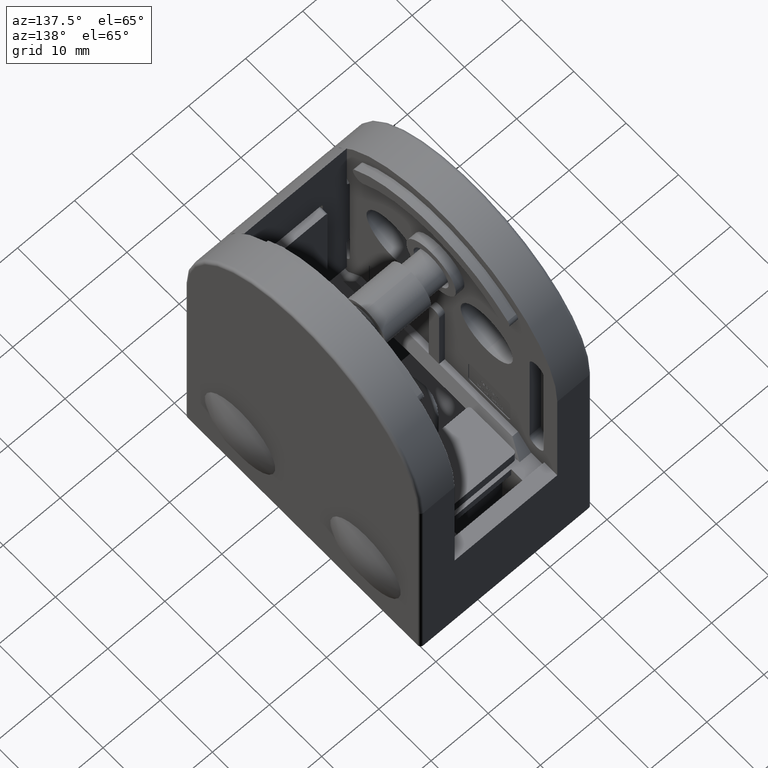
[diagram: clean part render]
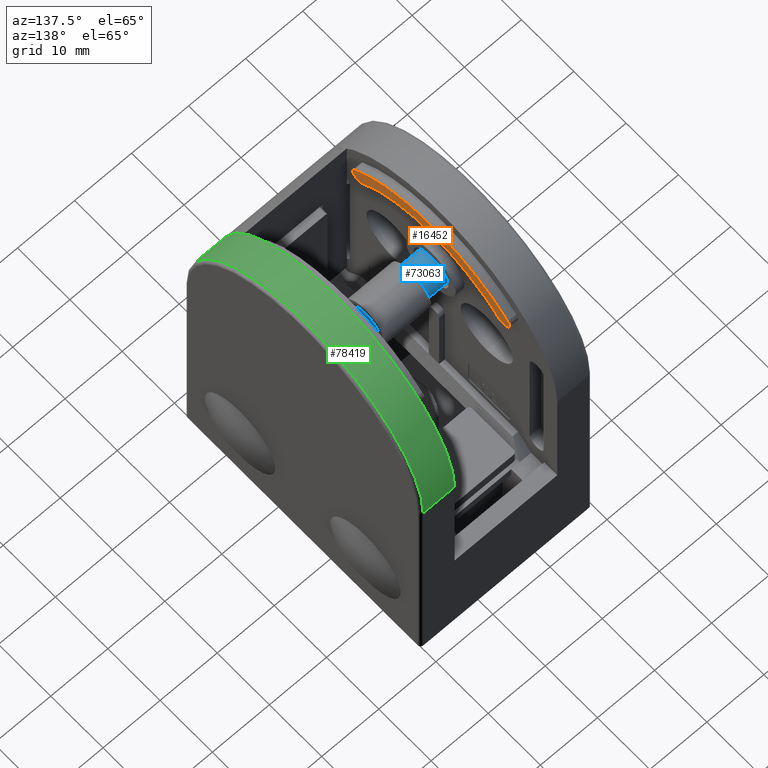
[diagram: same view with three faces highlighted in distinct colors, each labeled with its STEP entity id]
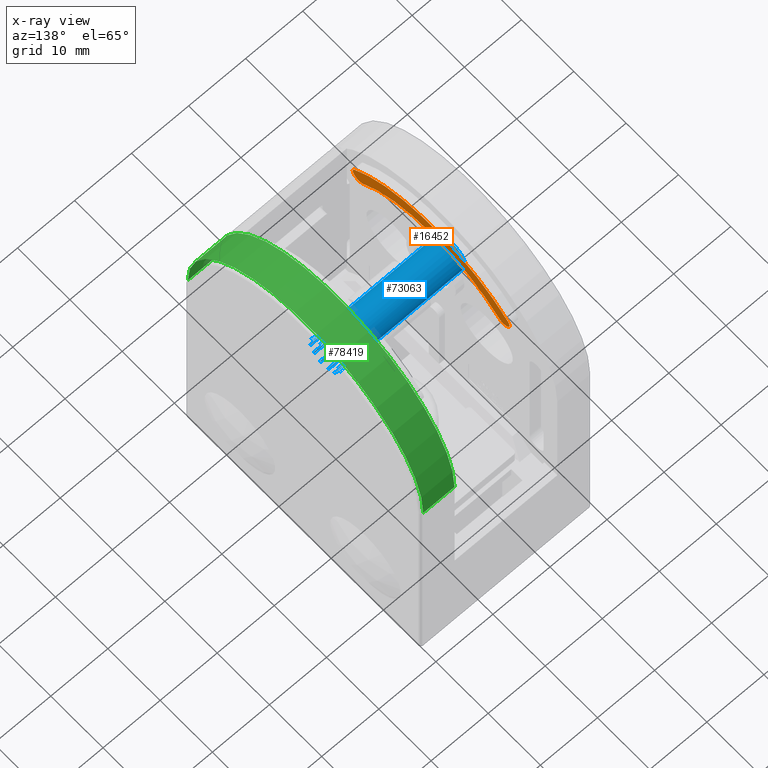
[diagram: x-ray of the same camera — body ghosted, the three highlighted faces saturated]
A machine part, auxiliary view with three faces highlighted in distinct colors.
The next image is the same camera in x-ray (body ghosted, the three faces saturated) — at least one of them is partly hidden behind the body in this view.
Their STEP definitions:

[orange] entity #16452 — the highlighted planar face has unit normal (-1, 0, 0).
#190 = DIRECTION ( 'NONE',  ( 0.000000000000000000, 0.000000000000000000, 1.000000000000000000 ) ) ;
#597 = CARTESIAN_POINT ( 'NONE',  ( 7.500000000000000000, -12.94196891191710463, 53.15367301153983703 ) ) ;
#2457 = CARTESIAN_POINT ( 'NONE',  ( 7.500000000000000000, -13.80000000000000249, 53.99259055926624029 ) ) ;
#2686 = VERTEX_POINT ( 'NONE', #12758 ) ;
#6182 = DIRECTION ( 'NONE',  ( 1.000000000000000000, 0.000000000000000000, 0.000000000000000000 ) ) ;
#9972 = EDGE_LOOP ( 'NONE', ( #33554, #26272, #20856, #91101 ) ) ;
#10549 = AXIS2_PLACEMENT_3D ( 'NONE', #44881, #36838, #65500 ) ;
#12758 = CARTESIAN_POINT ( 'NONE',  ( 7.500000000000000000, 14.65803108808290034, 54.83150810699262934 ) ) ;
#16176 = DIRECTION ( 'NONE',  ( 1.000000000000000000, 0.000000000000000000, 0.000000000000000000 ) ) ;
#16452 = ADVANCED_FACE ( 'NONE', ( #53926 ), #51688, .F. ) ;
#20178 = CIRCLE ( 'NONE', #30149, 1.199999999999999734 ) ;
#20856 = ORIENTED_EDGE ( 'NONE', *, *, #59773, .T. ) ;
#26272 = ORIENTED_EDGE ( 'NONE', *, *, #67344, .T. ) ;
#30149 = AXIS2_PLACEMENT_3D ( 'NONE', #71850, #63597, #190 ) ;
#31591 = DIRECTION ( 'NONE',  ( 0.000000000000000000, 0.000000000000000000, -1.000000000000000000 ) ) ;
#33554 = ORIENTED_EDGE ( 'NONE', *, *, #71491, .T. ) ;
#36838 = DIRECTION ( 'NONE',  ( -1.000000000000000000, -0.000000000000000000, 0.000000000000000000 ) ) ;
#37505 = DIRECTION ( 'NONE',  ( 0.000000000000000000, 0.000000000000000000, -1.000000000000000000 ) ) ;
#44881 = CARTESIAN_POINT ( 'NONE',  ( 7.500000000000000000, 6.899999999999997691, 47.24629527963310949 ) ) ;
#46950 = EDGE_CURVE ( 'NONE', #54317, #55582, #54565, .T. ) ;
#51688 = PLANE ( 'NONE',  #10549 ) ;
#53926 = FACE_OUTER_BOUND ( 'NONE', #9972, .T. ) ;
#54317 = VERTEX_POINT ( 'NONE', #597 ) ;
#54565 = CIRCLE ( 'NONE', #61135, 18.10000000000001918 ) ;
#55582 = VERTEX_POINT ( 'NONE', #86112 ) ;
#59773 = EDGE_CURVE ( 'NONE', #78953, #54317, #70880, .T. ) ;
#61135 = AXIS2_PLACEMENT_3D ( 'NONE', #81539, #80872, #31591 ) ;
#63597 = DIRECTION ( 'NONE',  ( 1.000000000000000000, 0.000000000000000000, -0.000000000000000000 ) ) ;
#65500 = DIRECTION ( 'NONE',  ( 0.000000000000000000, 0.000000000000000000, 1.000000000000000000 ) ) ;
#65797 = AXIS2_PLACEMENT_3D ( 'NONE', #2457, #16176, #37505 ) ;
#67344 = EDGE_CURVE ( 'NONE', #2686, #78953, #82992, .T. ) ;
#70693 = CARTESIAN_POINT ( 'NONE',  ( 7.500000000000000000, -6.722053469410127491E-15, 40.49999999999997868 ) ) ;
#70880 = CIRCLE ( 'NONE', #65797, 1.199999999999999734 ) ;
#71314 = AXIS2_PLACEMENT_3D ( 'NONE', #70693, #6182, #90451 ) ;
#71491 = EDGE_CURVE ( 'NONE', #55582, #2686, #20178, .T. ) ;
#71850 = CARTESIAN_POINT ( 'NONE',  ( 7.500000000000000000, 13.80000000000000071, 53.99259055926624029 ) ) ;
#75343 = CARTESIAN_POINT ( 'NONE',  ( 7.500000000000000000, -14.65803108808290389, 54.83150810699263644 ) ) ;
#78953 = VERTEX_POINT ( 'NONE', #75343 ) ;
#80872 = DIRECTION ( 'NONE',  ( -1.000000000000000000, -0.000000000000000000, -0.000000000000000000 ) ) ;
#81539 = CARTESIAN_POINT ( 'NONE',  ( 7.500000000000000000, -6.722053469410127491E-15, 40.49999999999997868 ) ) ;
#82992 = CIRCLE ( 'NONE', #71314, 20.50000000000002487 ) ;
#86112 = CARTESIAN_POINT ( 'NONE',  ( 7.500000000000000000, 12.94196891191709931, 53.15367301153982282 ) ) ;
#90451 = DIRECTION ( 'NONE',  ( 0.000000000000000000, 0.000000000000000000, -1.000000000000000000 ) ) ;
#91101 = ORIENTED_EDGE ( 'NONE', *, *, #46950, .T. ) ;

[blue] entity #73063 — the highlighted cylindrical surface (bore or boss wall) has radius 2.8 mm, axis along (1, -0, -0).
#51 = CARTESIAN_POINT ( 'NONE',  ( -2.033627779027476379, -1.924670895599498444, 5.000000000000000000 ) ) ;
#498 = CARTESIAN_POINT ( 'NONE',  ( -2.723508766279270965, -0.6499999999999713785, 5.000000000000000888 ) ) ;
#782 = CARTESIAN_POINT ( 'NONE',  ( 1.924670895599505327, -2.033627779027469273, 0.2999999999999997669 ) ) ;
#812 = DIRECTION ( 'NONE',  ( 0.000000000000000000, 0.000000000000000000, 1.000000000000000000 ) ) ;
#1055 = CARTESIAN_POINT ( 'NONE',  ( 0.000000000000000000, 0.000000000000000000, 5.000000000000000000 ) ) ;
#1503 = CARTESIAN_POINT ( 'NONE',  ( 2.033627779027463056, 1.924670895599512654, 0.2999999999999999334 ) ) ;
#1652 = LINE ( 'NONE', #21527, #60303 ) ;
#2131 = DIRECTION ( 'NONE',  ( 0.000000000000000000, 0.000000000000000000, 1.000000000000000000 ) ) ;
#2160 = ORIENTED_EDGE ( 'NONE', *, *, #87257, .T. ) ;
#2297 = CARTESIAN_POINT ( 'NONE',  ( 2.683627779027454086, -0.7988378706797595319, 5.000000000000000888 ) ) ;
#2349 = EDGE_CURVE ( 'NONE', #74665, #32201, #62572, .T. ) ;
#2765 = CIRCLE ( 'NONE', #16657, 2.799999999999999822 ) ;
#2938 = EDGE_CURVE ( 'NONE', #15989, #78799, #35914, .T. ) ;
#3038 = ORIENTED_EDGE ( 'NONE', *, *, #79364, .F. ) ;
#3473 = ORIENTED_EDGE ( 'NONE', *, *, #81772, .T. ) ;
#3647 = CARTESIAN_POINT ( 'NONE',  ( 0.6500000000000000222, -2.723508766279264304, 5.000000000000000000 ) ) ;
#4094 = AXIS2_PLACEMENT_3D ( 'NONE', #21038, #21308, #43224 ) ;
#4400 = DIRECTION ( 'NONE',  ( 0.000000000000000000, 0.000000000000000000, 1.000000000000000000 ) ) ;
#4460 = CARTESIAN_POINT ( 'NONE',  ( -0.6500000000000000222, 2.723508766279264304, 5.000000000000000888 ) ) ;
#4645 = AXIS2_PLACEMENT_3D ( 'NONE', #69507, #76515, #89790 ) ;
#4768 = LINE ( 'NONE', #51316, #12532 ) ;
#4811 = DIRECTION ( 'NONE',  ( -0.4999999999999980016, 0.8660254037844399289, 0.000000000000000000 ) ) ;
#4962 = DIRECTION ( 'NONE',  ( 0.000000000000000000, 0.000000000000000000, -1.000000000000000000 ) ) ;
#4986 = CARTESIAN_POINT ( 'NONE',  ( 0.000000000000000000, 0.000000000000000000, 0.2999999999999996003 ) ) ;
#5145 = CARTESIAN_POINT ( 'NONE',  ( -0.6499999999999999112, 2.723508766279263860, 0.2999999999999996003 ) ) ;
#5450 = EDGE_CURVE ( 'NONE', #25164, #88055, #69270, .T. ) ;
#5640 = CIRCLE ( 'NONE', #4094, 2.799999999999999822 ) ;
#5703 = VERTEX_POINT ( 'NONE', #82475 ) ;
#5716 = VERTEX_POINT ( 'NONE', #53528 ) ;
#5798 = CIRCLE ( 'NONE', #9464, 2.800000000000000266 ) ;
#5879 = CARTESIAN_POINT ( 'NONE',  ( -0.7988378706797688578, -2.683627779027451421, 5.000000000000000888 ) ) ;
#6036 = CARTESIAN_POINT ( 'NONE',  ( -0.6500000000000001332, -2.723508766279265192, 5.000000000000000000 ) ) ;
#6383 = CARTESIAN_POINT ( 'NONE',  ( 1.924670895599505327, -2.033627779027469273, 5.000000000000000000 ) ) ;
#6647 = DIRECTION ( 'NONE',  ( 0.000000000000000000, 0.000000000000000000, -1.000000000000000000 ) ) ;
#7041 = VECTOR ( 'NONE', #4962, 1000.000000000000000 ) ;
#7373 = VERTEX_POINT ( 'NONE', #28487 ) ;
#7774 = CARTESIAN_POINT ( 'NONE',  ( 1.924670895599519760, 2.033627779027455951, 5.000000000000000000 ) ) ;
#8068 = DIRECTION ( 'NONE',  ( 0.000000000000000000, 0.000000000000000000, -1.000000000000000000 ) ) ;
#8143 = ORIENTED_EDGE ( 'NONE', *, *, #48801, .T. ) ;
#8618 = ORIENTED_EDGE ( 'NONE', *, *, #69979, .T. ) ;
#9193 = DIRECTION ( 'NONE',  ( 1.000000000000000000, 0.000000000000000000, 0.000000000000000000 ) ) ;
#9464 = AXIS2_PLACEMENT_3D ( 'NONE', #46677, #18624, #12355 ) ;
#9512 = LINE ( 'NONE', #60144, #36077 ) ;
#10080 = CARTESIAN_POINT ( 'NONE',  ( 0.6499999999999999112, 2.723508766279263860, 0.2999999999999996003 ) ) ;
#10113 = LINE ( 'NONE', #18562, #82977 ) ;
#10151 = CARTESIAN_POINT ( 'NONE',  ( 0.000000000000000000, 0.000000000000000000, 0.2999999999999996003 ) ) ;
#10416 = CARTESIAN_POINT ( 'NONE',  ( 0.6500000000000000222, 2.723508766279264304, 5.000000000000000000 ) ) ;
#10665 = VERTEX_POINT ( 'NONE', #38895 ) ;
#10695 = CARTESIAN_POINT ( 'NONE',  ( -2.723508766279257198, 0.6500000000000284439, 5.000000000000000000 ) ) ;
#10698 = AXIS2_PLACEMENT_3D ( 'NONE', #17794, #25547, #32958 ) ;
#11096 = DIRECTION ( 'NONE',  ( 1.000000000000000000, 0.000000000000000000, 0.000000000000000000 ) ) ;
#11265 = DIRECTION ( 'NONE',  ( 0.000000000000000000, 0.000000000000000000, -1.000000000000000000 ) ) ;
#11712 = ORIENTED_EDGE ( 'NONE', *, *, #60626, .T. ) ;
#11989 = ORIENTED_EDGE ( 'NONE', *, *, #48820, .T. ) ;
#12050 = ORIENTED_EDGE ( 'NONE', *, *, #30045, .T. ) ;
#12251 = CIRCLE ( 'NONE', #60663, 2.799999999999999822 ) ;
#12355 = DIRECTION ( 'NONE',  ( -0.8660254037844449249, -0.4999999999999889533, 0.000000000000000000 ) ) ;
#12408 = EDGE_CURVE ( 'NONE', #74667, #31434, #52909, .T. ) ;
#12442 = DIRECTION ( 'NONE',  ( 0.000000000000000000, 0.000000000000000000, -1.000000000000000000 ) ) ;
#12532 = VECTOR ( 'NONE', #44518, 1000.000000000000000 ) ;
#12705 = AXIS2_PLACEMENT_3D ( 'NONE', #79760, #16263, #72703 ) ;
#12782 = ORIENTED_EDGE ( 'NONE', *, *, #62045, .T. ) ;
#12920 = DIRECTION ( 'NONE',  ( 0.000000000000000000, 0.000000000000000000, -1.000000000000000000 ) ) ;
#13493 = DIRECTION ( 'NONE',  ( 0.000000000000000000, 0.000000000000000000, -1.000000000000000000 ) ) ;
#13880 = DIRECTION ( 'NONE',  ( 0.000000000000000000, 0.000000000000000000, -1.000000000000000000 ) ) ;
#14097 = VECTOR ( 'NONE', #12442, 1000.000000000000000 ) ;
#15103 = ORIENTED_EDGE ( 'NONE', *, *, #85984, .T. ) ;
#15235 = VERTEX_POINT ( 'NONE', #21439 ) ;
#15317 = CARTESIAN_POINT ( 'NONE',  ( 2.033627779027463056, 1.924670895599512654, 5.000000000000000000 ) ) ;
#15989 = VERTEX_POINT ( 'NONE', #6036 ) ;
#16263 = DIRECTION ( 'NONE',  ( 0.000000000000000000, 0.000000000000000000, 1.000000000000000000 ) ) ;
#16657 = AXIS2_PLACEMENT_3D ( 'NONE', #66643, #46052, #11096 ) ;
#16776 = EDGE_CURVE ( 'NONE', #85544, #7373, #73706, .T. ) ;
#16801 = DIRECTION ( 'NONE',  ( 0.000000000000000000, 0.000000000000000000, 1.000000000000000000 ) ) ;
#17545 = ORIENTED_EDGE ( 'NONE', *, *, #23704, .T. ) ;
#17794 = CARTESIAN_POINT ( 'NONE',  ( 0.000000000000000000, 0.000000000000000000, 5.000000000000000000 ) ) ;
#18200 = VERTEX_POINT ( 'NONE', #21213 ) ;
#18414 = DIRECTION ( 'NONE',  ( 0.000000000000000000, 0.000000000000000000, -1.000000000000000000 ) ) ;
#18562 = CARTESIAN_POINT ( 'NONE',  ( -2.683627779027465632, -0.7988378706797221174, 5.000000000000000000 ) ) ;
#18624 = DIRECTION ( 'NONE',  ( 0.000000000000000000, 0.000000000000000000, 1.000000000000000000 ) ) ;
#18632 = CIRCLE ( 'NONE', #89856, 2.799999999999999822 ) ;
#18688 = EDGE_CURVE ( 'NONE', #35808, #61516, #60291, .T. ) ;
#18763 = CARTESIAN_POINT ( 'NONE',  ( 0.000000000000000000, 0.000000000000000000, 0.2999999999999996003 ) ) ;
#18767 = AXIS2_PLACEMENT_3D ( 'NONE', #44507, #2131, #52870 ) ;
#18980 = DIRECTION ( 'NONE',  ( -1.047444401652940164E-14, -1.000000000000000000, 0.000000000000000000 ) ) ;
#19158 = DIRECTION ( 'NONE',  ( 0.000000000000000000, 0.000000000000000000, -1.000000000000000000 ) ) ;
#19194 = CARTESIAN_POINT ( 'NONE',  ( -0.6500000000000000222, -2.723508766279264304, 5.000000000000000000 ) ) ;
#19363 = EDGE_CURVE ( 'NONE', #84702, #76849, #38150, .T. ) ;
#19811 = EDGE_CURVE ( 'NONE', #5703, #84702, #83335, .T. ) ;
#20345 = CARTESIAN_POINT ( 'NONE',  ( 0.000000000000000000, 0.000000000000000000, 5.000000000000000000 ) ) ;
#20652 = ORIENTED_EDGE ( 'NONE', *, *, #84752, .T. ) ;
#20794 = CIRCLE ( 'NONE', #90141, 2.799999999999999822 ) ;
#20804 = VECTOR ( 'NONE', #24605, 1000.000000000000000 ) ;
#20847 = ORIENTED_EDGE ( 'NONE', *, *, #25056, .T. ) ;
#21038 = CARTESIAN_POINT ( 'NONE',  ( 0.000000000000000000, 0.000000000000000000, 0.2999999999999996003 ) ) ;
#21213 = CARTESIAN_POINT ( 'NONE',  ( -2.033627779027436411, 1.924670895599542186, 5.000000000000000000 ) ) ;
#21308 = DIRECTION ( 'NONE',  ( 0.000000000000000000, 0.000000000000000000, 1.000000000000000000 ) ) ;
#21439 = CARTESIAN_POINT ( 'NONE',  ( 0.7988378706797500950, 2.683627779027457194, 0.2999999999999997669 ) ) ;
#21527 = CARTESIAN_POINT ( 'NONE',  ( -1.924670895599491116, 2.033627779027482596, 5.000000000000000000 ) ) ;
#21858 = CIRCLE ( 'NONE', #12705, 2.799999999999999822 ) ;
#21887 = VERTEX_POINT ( 'NONE', #90761 ) ;
#21943 = EDGE_CURVE ( 'NONE', #64517, #78556, #65513, .T. ) ;
#21996 = VERTEX_POINT ( 'NONE', #75671 ) ;
#22106 = ORIENTED_EDGE ( 'NONE', *, *, #46048, .F. ) ;
#22673 = ORIENTED_EDGE ( 'NONE', *, *, #54941, .F. ) ;
#22835 = DIRECTION ( 'NONE',  ( -0.000000000000000000, -0.000000000000000000, 1.000000000000000000 ) ) ;
#23285 = DIRECTION ( 'NONE',  ( 0.5000000000000039968, 0.8660254037844363761, 0.000000000000000000 ) ) ;
#23290 = CARTESIAN_POINT ( 'NONE',  ( 2.683627779027454974, -0.7988378706797596429, 0.3000000000000002665 ) ) ;
#23397 = EDGE_CURVE ( 'NONE', #86972, #51351, #2765, .T. ) ;
#23503 = VECTOR ( 'NONE', #18414, 1000.000000000000000 ) ;
#23704 = EDGE_CURVE ( 'NONE', #78919, #5716, #37164, .T. ) ;
#23762 = VERTEX_POINT ( 'NONE', #84993 ) ;
#24443 = FACE_OUTER_BOUND ( 'NONE', #77373, .T. ) ;
#24605 = DIRECTION ( 'NONE',  ( 0.000000000000000000, 0.000000000000000000, -1.000000000000000000 ) ) ;
#24668 = CARTESIAN_POINT ( 'NONE',  ( 2.723508766279261639, -0.6500000000000093481, 0.2999999999999996003 ) ) ;
#24874 = ORIENTED_EDGE ( 'NONE', *, *, #66487, .T. ) ;
#24907 = CARTESIAN_POINT ( 'NONE',  ( 2.723508766279266524, 0.6499999999999904743, 5.000000000000000888 ) ) ;
#25056 = EDGE_CURVE ( 'NONE', #10665, #74516, #53579, .T. ) ;
#25106 = DIRECTION ( 'NONE',  ( 1.000000000000000000, 0.000000000000000000, 0.000000000000000000 ) ) ;
#25164 = VERTEX_POINT ( 'NONE', #86898 ) ;
#25547 = DIRECTION ( 'NONE',  ( 0.000000000000000000, 0.000000000000000000, 1.000000000000000000 ) ) ;
#25619 = VECTOR ( 'NONE', #61059, 1000.000000000000000 ) ;
#25661 = DIRECTION ( 'NONE',  ( 0.8660254037844415942, 0.4999999999999950040, 0.000000000000000000 ) ) ;
#25875 = DIRECTION ( 'NONE',  ( 0.000000000000000000, 0.000000000000000000, 1.000000000000000000 ) ) ;
#26085 = DIRECTION ( 'NONE',  ( 0.000000000000000000, 0.000000000000000000, 1.000000000000000000 ) ) ;
#26242 = DIRECTION ( 'NONE',  ( -0.000000000000000000, -0.000000000000000000, -1.000000000000000000 ) ) ;
#26354 = VECTOR ( 'NONE', #64050, 1000.000000000000000 ) ;
#26705 = ORIENTED_EDGE ( 'NONE', *, *, #49566, .T. ) ;
#27123 = CARTESIAN_POINT ( 'NONE',  ( 0.7988378706797502060, 2.683627779027457194, 5.000000000000000000 ) ) ;
#27177 = ORIENTED_EDGE ( 'NONE', *, *, #23397, .T. ) ;
#27311 = CARTESIAN_POINT ( 'NONE',  ( -1.924670895599533971, -2.033627779027443072, 5.000000000000000000 ) ) ;
#27852 = CARTESIAN_POINT ( 'NONE',  ( 0.6500000000000000222, -2.723508766279264304, 5.000000000000000888 ) ) ;
#27962 = VERTEX_POINT ( 'NONE', #90698 ) ;
#28055 = VERTEX_POINT ( 'NONE', #42038 ) ;
#28334 = VERTEX_POINT ( 'NONE', #24668 ) ;
#28483 = AXIS2_PLACEMENT_3D ( 'NONE', #76270, #26085, #82486 ) ;
#28487 = CARTESIAN_POINT ( 'NONE',  ( -2.683627779027465632, -0.7988378706797221174, 0.2999999999999996003 ) ) ;
#28582 = VERTEX_POINT ( 'NONE', #782 ) ;
#28761 = CARTESIAN_POINT ( 'NONE',  ( 2.799999999999999822, 0.000000000000000000, 22.49999999999999645 ) ) ;
#28787 = AXIS2_PLACEMENT_3D ( 'NONE', #49402, #35215, #34551 ) ;
#28935 = EDGE_CURVE ( 'NONE', #63863, #42664, #12251, .T. ) ;
#29603 = CARTESIAN_POINT ( 'NONE',  ( 0.000000000000000000, 0.000000000000000000, 0.2999999999999996003 ) ) ;
#29640 = CARTESIAN_POINT ( 'NONE',  ( -2.033627779027435523, 1.924670895599541076, 0.2999999999999996003 ) ) ;
#29703 = DIRECTION ( 'NONE',  ( 0.000000000000000000, 0.000000000000000000, 1.000000000000000000 ) ) ;
#29843 = CARTESIAN_POINT ( 'NONE',  ( -2.723508766279258086, 0.6500000000000286660, 5.000000000000000000 ) ) ;
#30045 = EDGE_CURVE ( 'NONE', #61516, #10665, #74806, .T. ) ;
#30144 = CIRCLE ( 'NONE', #75975, 2.799999999999999822 ) ;
#30753 = DIRECTION ( 'NONE',  ( 1.000000000000000000, 0.000000000000000000, 0.000000000000000000 ) ) ;
#30855 = EDGE_CURVE ( 'NONE', #21887, #51351, #76937, .T. ) ;
#31434 = VERTEX_POINT ( 'NONE', #498 ) ;
#31516 = ORIENTED_EDGE ( 'NONE', *, *, #84336, .T. ) ;
#31525 = LINE ( 'NONE', #15317, #85577 ) ;
#32055 = DIRECTION ( 'NONE',  ( 0.000000000000000000, 0.000000000000000000, -1.000000000000000000 ) ) ;
#32081 = DIRECTION ( 'NONE',  ( 1.000000000000000000, 0.000000000000000000, 0.000000000000000000 ) ) ;
#32201 = VERTEX_POINT ( 'NONE', #42349 ) ;
#32437 = EDGE_CURVE ( 'NONE', #21887, #44707, #46951, .T. ) ;
#32439 = DIRECTION ( 'NONE',  ( 0.000000000000000000, 0.000000000000000000, 1.000000000000000000 ) ) ;
#32958 = DIRECTION ( 'NONE',  ( 0.4999999999999918954, -0.8660254037844432595, 0.000000000000000000 ) ) ;
#33174 = DIRECTION ( 'NONE',  ( 0.000000000000000000, 0.000000000000000000, 1.000000000000000000 ) ) ;
#34539 = CIRCLE ( 'NONE', #38102, 2.800000000000000266 ) ;
#34551 = DIRECTION ( 'NONE',  ( 1.000000000000000000, 0.000000000000000000, 0.000000000000000000 ) ) ;
#35013 = VECTOR ( 'NONE', #43032, 1000.000000000000000 ) ;
#35198 = LINE ( 'NONE', #51, #26354 ) ;
#35215 = DIRECTION ( 'NONE',  ( 0.000000000000000000, 0.000000000000000000, 1.000000000000000000 ) ) ;
#35224 = AXIS2_PLACEMENT_3D ( 'NONE', #1055, #64727, #58265 ) ;
#35264 = ORIENTED_EDGE ( 'NONE', *, *, #50898, .T. ) ;
#35808 = VERTEX_POINT ( 'NONE', #61548 ) ;
#35901 = CARTESIAN_POINT ( 'NONE',  ( 0.7988378706797314432, -2.683627779027462967, 5.000000000000000000 ) ) ;
#35914 = CIRCLE ( 'NONE', #28483, 2.800000000000000266 ) ;
#36047 = DIRECTION ( 'NONE',  ( 0.000000000000000000, 0.000000000000000000, -1.000000000000000000 ) ) ;
#36077 = VECTOR ( 'NONE', #60763, 1000.000000000000000 ) ;
#36340 = ORIENTED_EDGE ( 'NONE', *, *, #68608, .T. ) ;
#36968 = VECTOR ( 'NONE', #8068, 1000.000000000000000 ) ;
#36991 = CARTESIAN_POINT ( 'NONE',  ( 0.000000000000000000, 0.000000000000000000, 5.000000000000000000 ) ) ;
#37059 = CIRCLE ( 'NONE', #18767, 2.800000000000000711 ) ;
#37164 = CIRCLE ( 'NONE', #10698, 2.800000000000000711 ) ;
#37292 = ORIENTED_EDGE ( 'NONE', *, *, #2349, .T. ) ;
#37349 = LINE ( 'NONE', #52399, #20804 ) ;
#37659 = VERTEX_POINT ( 'NONE', #28761 ) ;
#37753 = DIRECTION ( 'NONE',  ( 3.491481338843133750E-15, 1.000000000000000000, 0.000000000000000000 ) ) ;
#37937 = CARTESIAN_POINT ( 'NONE',  ( -0.7988378706797689688, -2.683627779027451865, 0.3000000000000002109 ) ) ;
#38102 = AXIS2_PLACEMENT_3D ( 'NONE', #20345, #47244, #4811 ) ;
#38113 = CARTESIAN_POINT ( 'NONE',  ( 0.000000000000000000, 0.000000000000000000, 0.2999999999999996003 ) ) ;
#38150 = LINE ( 'NONE', #83584, #73413 ) ;
#38176 = ORIENTED_EDGE ( 'NONE', *, *, #18688, .T. ) ;
#38895 = CARTESIAN_POINT ( 'NONE',  ( 2.723508766279266524, 0.6499999999999904743, 0.2999999999999997113 ) ) ;
#38940 = CARTESIAN_POINT ( 'NONE',  ( 0.000000000000000000, 0.000000000000000000, 0.2999999999999996003 ) ) ;
#39386 = ORIENTED_EDGE ( 'NONE', *, *, #86350, .T. ) ;
#39707 = CARTESIAN_POINT ( 'NONE',  ( 0.000000000000000000, 0.000000000000000000, 5.000000000000000000 ) ) ;
#39949 = DIRECTION ( 'NONE',  ( 1.000000000000000000, 0.000000000000000000, 0.000000000000000000 ) ) ;
#40144 = EDGE_CURVE ( 'NONE', #25164, #44952, #5798, .T. ) ;
#40279 = EDGE_CURVE ( 'NONE', #45787, #78556, #73230, .T. ) ;
#40766 = VERTEX_POINT ( 'NONE', #51254 ) ;
#41404 = ORIENTED_EDGE ( 'NONE', *, *, #67946, .F. ) ;
#41465 = ORIENTED_EDGE ( 'NONE', *, *, #49249, .T. ) ;
#41768 = CIRCLE ( 'NONE', #57818, 2.800000000000000266 ) ;
#42038 = CARTESIAN_POINT ( 'NONE',  ( -1.924670895599491116, 2.033627779027482596, 0.2999999999999996003 ) ) ;
#42349 = CARTESIAN_POINT ( 'NONE',  ( -2.683627779027448756, 0.7988378706797785167, 0.2999999999999998224 ) ) ;
#42467 = EDGE_CURVE ( 'NONE', #15989, #70059, #84500, .T. ) ;
#42664 = VERTEX_POINT ( 'NONE', #58417 ) ;
#42897 = AXIS2_PLACEMENT_3D ( 'NONE', #85447, #29703, #9193 ) ;
#42924 = EDGE_CURVE ( 'NONE', #28055, #45981, #18632, .T. ) ;
#43032 = DIRECTION ( 'NONE',  ( 0.000000000000000000, 0.000000000000000000, -1.000000000000000000 ) ) ;
#43224 = DIRECTION ( 'NONE',  ( 1.000000000000000000, 0.000000000000000000, 0.000000000000000000 ) ) ;
#44380 = VECTOR ( 'NONE', #12920, 1000.000000000000000 ) ;
#44507 = CARTESIAN_POINT ( 'NONE',  ( 0.000000000000000000, 0.000000000000000000, 5.000000000000000000 ) ) ;
#44518 = DIRECTION ( 'NONE',  ( 0.000000000000000000, 0.000000000000000000, -1.000000000000000000 ) ) ;
#44707 = VERTEX_POINT ( 'NONE', #60755 ) ;
#44952 = VERTEX_POINT ( 'NONE', #57892 ) ;
#45195 = ORIENTED_EDGE ( 'NONE', *, *, #63056, .F. ) ;
#45377 = AXIS2_PLACEMENT_3D ( 'NONE', #89454, #47291, #25661 ) ;
#45787 = VERTEX_POINT ( 'NONE', #63255 ) ;
#45981 = VERTEX_POINT ( 'NONE', #29640 ) ;
#46048 = EDGE_CURVE ( 'NONE', #27962, #74516, #49193, .T. ) ;
#46052 = DIRECTION ( 'NONE',  ( 0.000000000000000000, 0.000000000000000000, 1.000000000000000000 ) ) ;
#46088 = CARTESIAN_POINT ( 'NONE',  ( 0.000000000000000000, 0.000000000000000000, 0.2999999999999996003 ) ) ;
#46314 = AXIS2_PLACEMENT_3D ( 'NONE', #29603, #812, #71808 ) ;
#46569 = CYLINDRICAL_SURFACE ( 'NONE', #46744, 2.799999999999999822 ) ;
#46677 = CARTESIAN_POINT ( 'NONE',  ( 0.000000000000000000, 0.000000000000000000, 5.000000000000000000 ) ) ;
#46744 = AXIS2_PLACEMENT_3D ( 'NONE', #53370, #26242, #81433 ) ;
#46775 = EDGE_CURVE ( 'NONE', #70179, #42664, #74433, .T. ) ;
#46846 = DIRECTION ( 'NONE',  ( 0.000000000000000000, 0.000000000000000000, -1.000000000000000000 ) ) ;
#46951 = CIRCLE ( 'NONE', #45377, 2.800000000000000266 ) ;
#47244 = DIRECTION ( 'NONE',  ( 0.000000000000000000, 0.000000000000000000, 1.000000000000000000 ) ) ;
#47291 = DIRECTION ( 'NONE',  ( 0.000000000000000000, 0.000000000000000000, 1.000000000000000000 ) ) ;
#48172 = CARTESIAN_POINT ( 'NONE',  ( -1.924670895599533749, -2.033627779027442628, 0.2999999999999996003 ) ) ;
#48801 = EDGE_CURVE ( 'NONE', #66227, #70059, #30144, .T. ) ;
#48820 = EDGE_CURVE ( 'NONE', #78799, #86972, #75306, .T. ) ;
#48916 = AXIS2_PLACEMENT_3D ( 'NONE', #38113, #16801, #30753 ) ;
#49193 = LINE ( 'NONE', #53960, #89916 ) ;
#49249 = EDGE_CURVE ( 'NONE', #37659, #37659, #20794, .T. ) ;
#49256 = VERTEX_POINT ( 'NONE', #4460 ) ;
#49402 = CARTESIAN_POINT ( 'NONE',  ( 0.000000000000000000, 0.000000000000000000, 0.2999999999999996003 ) ) ;
#49517 = EDGE_CURVE ( 'NONE', #64517, #70330, #63820, .T. ) ;
#49566 = EDGE_CURVE ( 'NONE', #18200, #74665, #21858, .T. ) ;
#49840 = VERTEX_POINT ( 'NONE', #83755 ) ;
#50202 = ORIENTED_EDGE ( 'NONE', *, *, #40279, .T. ) ;
#50657 = ORIENTED_EDGE ( 'NONE', *, *, #28935, .T. ) ;
#50730 = CARTESIAN_POINT ( 'NONE',  ( -2.723508766279271409, -0.6499999999999714895, 5.000000000000000000 ) ) ;
#50898 = EDGE_CURVE ( 'NONE', #44707, #28582, #83500, .T. ) ;
#51254 = CARTESIAN_POINT ( 'NONE',  ( 0.6500000000000001332, 2.723508766279265192, 5.000000000000000000 ) ) ;
#51316 = CARTESIAN_POINT ( 'NONE',  ( 2.033627779027449289, -1.924670895599527087, 5.000000000000000000 ) ) ;
#51351 = VERTEX_POINT ( 'NONE', #62490 ) ;
#51602 = CIRCLE ( 'NONE', #48916, 2.799999999999999822 ) ;
#51618 = ORIENTED_EDGE ( 'NONE', *, *, #42924, .T. ) ;
#51644 = ORIENTED_EDGE ( 'NONE', *, *, #72861, .T. ) ;
#51681 = DIRECTION ( 'NONE',  ( 0.000000000000000000, 0.000000000000000000, 1.000000000000000000 ) ) ;
#51963 = CARTESIAN_POINT ( 'NONE',  ( 0.000000000000000000, 0.000000000000000000, 5.000000000000000000 ) ) ;
#52399 = CARTESIAN_POINT ( 'NONE',  ( -0.7988378706797689688, -2.683627779027451865, 5.000000000000000000 ) ) ;
#52870 = DIRECTION ( 'NONE',  ( -0.8660254037844380415, 0.5000000000000009992, 0.000000000000000000 ) ) ;
#52909 = CIRCLE ( 'NONE', #81891, 2.800000000000000266 ) ;
#53370 = CARTESIAN_POINT ( 'NONE',  ( 0.000000000000000000, 0.000000000000000000, 23.00000000000000000 ) ) ;
#53462 = DIRECTION ( 'NONE',  ( 0.000000000000000000, 0.000000000000000000, 1.000000000000000000 ) ) ;
#53528 = CARTESIAN_POINT ( 'NONE',  ( -2.033627779027475935, -1.924670895599498222, 5.000000000000000888 ) ) ;
#53548 = VERTEX_POINT ( 'NONE', #59572 ) ;
#53579 = CIRCLE ( 'NONE', #46314, 2.799999999999999822 ) ;
#53960 = CARTESIAN_POINT ( 'NONE',  ( 2.683627779027459859, 0.7988378706797408801, 5.000000000000000000 ) ) ;
#54626 = DIRECTION ( 'NONE',  ( 0.000000000000000000, 0.000000000000000000, -1.000000000000000000 ) ) ;
#54941 = EDGE_CURVE ( 'NONE', #74667, #49840, #84184, .T. ) ;
#55264 = ORIENTED_EDGE ( 'NONE', *, *, #87787, .F. ) ;
#55397 = ORIENTED_EDGE ( 'NONE', *, *, #46775, .F. ) ;
#56233 = CARTESIAN_POINT ( 'NONE',  ( 2.723508766279266524, 0.6499999999999904743, 5.000000000000000000 ) ) ;
#57282 = CARTESIAN_POINT ( 'NONE',  ( 0.000000000000000000, 0.000000000000000000, 5.000000000000000000 ) ) ;
#57362 = CIRCLE ( 'NONE', #42897, 2.799999999999999822 ) ;
#57791 = CARTESIAN_POINT ( 'NONE',  ( -2.723508766279271409, -0.6499999999999714895, 0.2999999999999998779 ) ) ;
#57818 = AXIS2_PLACEMENT_3D ( 'NONE', #36991, #22835, #65354 ) ;
#57892 = CARTESIAN_POINT ( 'NONE',  ( -1.924670895599491116, 2.033627779027482596, 5.000000000000000888 ) ) ;
#58265 = DIRECTION ( 'NONE',  ( 0.8660254037844344888, -0.5000000000000071054, 0.000000000000000000 ) ) ;
#58301 = ORIENTED_EDGE ( 'NONE', *, *, #40144, .T. ) ;
#58377 = EDGE_LOOP ( 'NONE', ( #3038, #17545, #74044, #50202, #75926, #70480, #20652, #8143, #74530, #85520, #11989, #27177, #75580, #88967, #35264, #3473, #74786, #59366, #71330, #51644, #41404, #38176, #12050, #20847, #22106, #65178, #8618, #50657, #55397, #2160, #11712, #39386, #55264, #36340, #31516, #15103, #83549, #58301, #79343, #51618, #45195, #26705, #37292, #24874, #22673, #83648, #12782, #69334 ) ) ;
#58417 = CARTESIAN_POINT ( 'NONE',  ( 1.924670895599519538, 2.033627779027455507, 0.2999999999999996003 ) ) ;
#58425 = AXIS2_PLACEMENT_3D ( 'NONE', #18763, #25875, #90316 ) ;
#58688 = DIRECTION ( 'NONE',  ( 1.000000000000000000, 0.000000000000000000, 0.000000000000000000 ) ) ;
#59366 = ORIENTED_EDGE ( 'NONE', *, *, #19811, .T. ) ;
#59572 = CARTESIAN_POINT ( 'NONE',  ( 2.033627779027462612, 1.924670895599512432, 5.000000000000000888 ) ) ;
#59784 = FACE_OUTER_BOUND ( 'NONE', #58377, .T. ) ;
#59885 = LINE ( 'NONE', #27123, #25619 ) ;
#60144 = CARTESIAN_POINT ( 'NONE',  ( -2.033627779027435523, 1.924670895599541076, 5.000000000000000000 ) ) ;
#60291 = CIRCLE ( 'NONE', #72044, 2.800000000000000266 ) ;
#60303 = VECTOR ( 'NONE', #36047, 1000.000000000000000 ) ;
#60453 = VECTOR ( 'NONE', #32055, 1000.000000000000000 ) ;
#60626 = EDGE_CURVE ( 'NONE', #21996, #15235, #59885, .T. ) ;
#60663 = AXIS2_PLACEMENT_3D ( 'NONE', #4986, #33174, #39949 ) ;
#60755 = CARTESIAN_POINT ( 'NONE',  ( 1.924670895599505327, -2.033627779027469273, 5.000000000000000888 ) ) ;
#60763 = DIRECTION ( 'NONE',  ( 0.000000000000000000, 0.000000000000000000, -1.000000000000000000 ) ) ;
#61022 = CARTESIAN_POINT ( 'NONE',  ( -0.7988378706797127915, 2.683627779027468296, 5.000000000000000000 ) ) ;
#61059 = DIRECTION ( 'NONE',  ( 0.000000000000000000, 0.000000000000000000, -1.000000000000000000 ) ) ;
#61140 = EDGE_CURVE ( 'NONE', #27962, #53548, #34539, .T. ) ;
#61516 = VERTEX_POINT ( 'NONE', #24907 ) ;
#61524 = DIRECTION ( 'NONE',  ( 0.000000000000000000, 0.000000000000000000, -1.000000000000000000 ) ) ;
#61548 = CARTESIAN_POINT ( 'NONE',  ( 2.723508766279262527, -0.6500000000000095701, 5.000000000000000000 ) ) ;
#62045 = EDGE_CURVE ( 'NONE', #31434, #85544, #69920, .T. ) ;
#62490 = CARTESIAN_POINT ( 'NONE',  ( 0.7988378706797313322, -2.683627779027462523, 0.2999999999999996003 ) ) ;
#62572 = LINE ( 'NONE', #63200, #76840 ) ;
#63056 = EDGE_CURVE ( 'NONE', #18200, #45981, #9512, .T. ) ;
#63200 = CARTESIAN_POINT ( 'NONE',  ( -2.683627779027448756, 0.7988378706797784057, 5.000000000000000000 ) ) ;
#63255 = CARTESIAN_POINT ( 'NONE',  ( -2.033627779027476379, -1.924670895599498444, 0.2999999999999999334 ) ) ;
#63820 = CIRCLE ( 'NONE', #35224, 2.800000000000000711 ) ;
#63863 = VERTEX_POINT ( 'NONE', #1503 ) ;
#64050 = DIRECTION ( 'NONE',  ( 0.000000000000000000, 0.000000000000000000, -1.000000000000000000 ) ) ;
#64517 = VERTEX_POINT ( 'NONE', #85953 ) ;
#64727 = DIRECTION ( 'NONE',  ( 0.000000000000000000, 0.000000000000000000, 1.000000000000000000 ) ) ;
#64947 = VECTOR ( 'NONE', #13880, 1000.000000000000000 ) ;
#65178 = ORIENTED_EDGE ( 'NONE', *, *, #61140, .T. ) ;
#65354 = DIRECTION ( 'NONE',  ( -1.000000000000000000, 0.000000000000000000, 0.000000000000000000 ) ) ;
#65498 = VECTOR ( 'NONE', #65769, 1000.000000000000000 ) ;
#65513 = LINE ( 'NONE', #27311, #7041 ) ;
#65580 = AXIS2_PLACEMENT_3D ( 'NONE', #57282, #85238, #23285 ) ;
#65769 = DIRECTION ( 'NONE',  ( 0.000000000000000000, 0.000000000000000000, -1.000000000000000000 ) ) ;
#66227 = VERTEX_POINT ( 'NONE', #37937 ) ;
#66329 = DIRECTION ( 'NONE',  ( 0.000000000000000000, 0.000000000000000000, 1.000000000000000000 ) ) ;
#66487 = EDGE_CURVE ( 'NONE', #32201, #49840, #75357, .T. ) ;
#66643 = CARTESIAN_POINT ( 'NONE',  ( 0.000000000000000000, 0.000000000000000000, 0.2999999999999996003 ) ) ;
#66949 = VECTOR ( 'NONE', #6647, 1000.000000000000000 ) ;
#67108 = CARTESIAN_POINT ( 'NONE',  ( 1.924670895599520426, 2.033627779027456395, 5.000000000000000000 ) ) ;
#67385 = CARTESIAN_POINT ( 'NONE',  ( -2.683627779027466076, -0.7988378706797225615, 5.000000000000000000 ) ) ;
#67946 = EDGE_CURVE ( 'NONE', #35808, #28334, #79655, .T. ) ;
#68608 = EDGE_CURVE ( 'NONE', #40766, #49256, #41768, .T. ) ;
#68746 = CARTESIAN_POINT ( 'NONE',  ( 2.723508766279262083, -0.6500000000000094591, 5.000000000000000000 ) ) ;
#69096 = AXIS2_PLACEMENT_3D ( 'NONE', #46088, #32439, #74692 ) ;
#69270 = LINE ( 'NONE', #61022, #60453 ) ;
#69334 = ORIENTED_EDGE ( 'NONE', *, *, #16776, .T. ) ;
#69507 = CARTESIAN_POINT ( 'NONE',  ( 0.000000000000000000, 0.000000000000000000, 0.2999999999999996003 ) ) ;
#69920 = LINE ( 'NONE', #50730, #65498 ) ;
#69979 = EDGE_CURVE ( 'NONE', #53548, #63863, #31525, .T. ) ;
#70059 = VERTEX_POINT ( 'NONE', #85641 ) ;
#70179 = VERTEX_POINT ( 'NONE', #67108 ) ;
#70330 = VERTEX_POINT ( 'NONE', #5879 ) ;
#70480 = ORIENTED_EDGE ( 'NONE', *, *, #49517, .T. ) ;
#71118 = DIRECTION ( 'NONE',  ( 0.000000000000000000, 0.000000000000000000, -1.000000000000000000 ) ) ;
#71330 = ORIENTED_EDGE ( 'NONE', *, *, #19363, .T. ) ;
#71808 = DIRECTION ( 'NONE',  ( 1.000000000000000000, 0.000000000000000000, 0.000000000000000000 ) ) ;
#72044 = AXIS2_PLACEMENT_3D ( 'NONE', #51963, #51681, #37753 ) ;
#72703 = DIRECTION ( 'NONE',  ( -0.5000000000000101030, -0.8660254037844328234, 0.000000000000000000 ) ) ;
#72861 = EDGE_CURVE ( 'NONE', #76849, #28334, #5640, .T. ) ;
#73063 = ADVANCED_FACE ( 'NONE', ( #59784, #24443 ), #46569, .T. ) ;
#73230 = CIRCLE ( 'NONE', #4645, 2.799999999999999822 ) ;
#73413 = VECTOR ( 'NONE', #13493, 1000.000000000000000 ) ;
#73706 = CIRCLE ( 'NONE', #69096, 2.799999999999999822 ) ;
#74044 = ORIENTED_EDGE ( 'NONE', *, *, #82571, .T. ) ;
#74137 = CARTESIAN_POINT ( 'NONE',  ( 0.6500000000000000222, -2.723508766279264304, 0.2999999999999998779 ) ) ;
#74261 = CARTESIAN_POINT ( 'NONE',  ( 0.000000000000000000, 0.000000000000000000, 22.49999999999999645 ) ) ;
#74433 = LINE ( 'NONE', #7774, #36968 ) ;
#74516 = VERTEX_POINT ( 'NONE', #75795 ) ;
#74530 = ORIENTED_EDGE ( 'NONE', *, *, #42467, .F. ) ;
#74577 = EDGE_CURVE ( 'NONE', #44952, #28055, #1652, .T. ) ;
#74665 = VERTEX_POINT ( 'NONE', #79753 ) ;
#74667 = VERTEX_POINT ( 'NONE', #29843 ) ;
#74692 = DIRECTION ( 'NONE',  ( 1.000000000000000000, 0.000000000000000000, 0.000000000000000000 ) ) ;
#74786 = ORIENTED_EDGE ( 'NONE', *, *, #88458, .F. ) ;
#74806 = LINE ( 'NONE', #56233, #64947 ) ;
#75306 = LINE ( 'NONE', #3647, #87428 ) ;
#75357 = CIRCLE ( 'NONE', #58425, 2.799999999999999822 ) ;
#75580 = ORIENTED_EDGE ( 'NONE', *, *, #30855, .F. ) ;
#75671 = CARTESIAN_POINT ( 'NONE',  ( 0.7988378706797502060, 2.683627779027457194, 5.000000000000000888 ) ) ;
#75759 = CIRCLE ( 'NONE', #28787, 2.799999999999999822 ) ;
#75795 = CARTESIAN_POINT ( 'NONE',  ( 2.683627779027459859, 0.7988378706797408801, 0.2999999999999996003 ) ) ;
#75926 = ORIENTED_EDGE ( 'NONE', *, *, #21943, .F. ) ;
#75975 = AXIS2_PLACEMENT_3D ( 'NONE', #38940, #53462, #25106 ) ;
#76126 = VERTEX_POINT ( 'NONE', #5145 ) ;
#76270 = CARTESIAN_POINT ( 'NONE',  ( 0.000000000000000000, 0.000000000000000000, 5.000000000000000000 ) ) ;
#76515 = DIRECTION ( 'NONE',  ( 0.000000000000000000, 0.000000000000000000, 1.000000000000000000 ) ) ;
#76840 = VECTOR ( 'NONE', #83192, 1000.000000000000000 ) ;
#76849 = VERTEX_POINT ( 'NONE', #23290 ) ;
#76937 = LINE ( 'NONE', #35901, #35013 ) ;
#77373 = EDGE_LOOP ( 'NONE', ( #41465 ) ) ;
#77803 = LINE ( 'NONE', #10416, #78866 ) ;
#78556 = VERTEX_POINT ( 'NONE', #48172 ) ;
#78799 = VERTEX_POINT ( 'NONE', #27852 ) ;
#78866 = VECTOR ( 'NONE', #81064, 1000.000000000000000 ) ;
#78919 = VERTEX_POINT ( 'NONE', #67385 ) ;
#79266 = LINE ( 'NONE', #82815, #14097 ) ;
#79343 = ORIENTED_EDGE ( 'NONE', *, *, #74577, .T. ) ;
#79364 = EDGE_CURVE ( 'NONE', #78919, #7373, #10113, .T. ) ;
#79655 = LINE ( 'NONE', #68746, #44380 ) ;
#79753 = CARTESIAN_POINT ( 'NONE',  ( -2.683627779027448756, 0.7988378706797785167, 5.000000000000000888 ) ) ;
#79760 = CARTESIAN_POINT ( 'NONE',  ( 0.000000000000000000, 0.000000000000000000, 5.000000000000000000 ) ) ;
#81064 = DIRECTION ( 'NONE',  ( 0.000000000000000000, 0.000000000000000000, -1.000000000000000000 ) ) ;
#81433 = DIRECTION ( 'NONE',  ( -1.000000000000000000, 0.000000000000000000, 0.000000000000000000 ) ) ;
#81772 = EDGE_CURVE ( 'NONE', #28582, #23762, #57362, .T. ) ;
#81891 = AXIS2_PLACEMENT_3D ( 'NONE', #39707, #4400, #18980 ) ;
#82475 = CARTESIAN_POINT ( 'NONE',  ( 2.033627779027449289, -1.924670895599527531, 5.000000000000000000 ) ) ;
#82486 = DIRECTION ( 'NONE',  ( 1.000000000000000000, 0.000000000000000000, 0.000000000000000000 ) ) ;
#82571 = EDGE_CURVE ( 'NONE', #5716, #45787, #35198, .T. ) ;
#82815 = CARTESIAN_POINT ( 'NONE',  ( -0.6500000000000000222, 2.723508766279264304, 5.000000000000000000 ) ) ;
#82977 = VECTOR ( 'NONE', #54626, 1000.000000000000000 ) ;
#83192 = DIRECTION ( 'NONE',  ( 0.000000000000000000, 0.000000000000000000, -1.000000000000000000 ) ) ;
#83335 = CIRCLE ( 'NONE', #65580, 2.800000000000000711 ) ;
#83500 = LINE ( 'NONE', #6383, #66949 ) ;
#83549 = ORIENTED_EDGE ( 'NONE', *, *, #5450, .F. ) ;
#83584 = CARTESIAN_POINT ( 'NONE',  ( 2.683627779027454974, -0.7988378706797597539, 5.000000000000000000 ) ) ;
#83648 = ORIENTED_EDGE ( 'NONE', *, *, #12408, .T. ) ;
#83755 = CARTESIAN_POINT ( 'NONE',  ( -2.723508766279257198, 0.6500000000000284439, 0.2999999999999996003 ) ) ;
#84184 = LINE ( 'NONE', #10695, #23503 ) ;
#84336 = EDGE_CURVE ( 'NONE', #49256, #76126, #79266, .T. ) ;
#84500 = LINE ( 'NONE', #19194, #89945 ) ;
#84702 = VERTEX_POINT ( 'NONE', #2297 ) ;
#84752 = EDGE_CURVE ( 'NONE', #70330, #66227, #37349, .T. ) ;
#84993 = CARTESIAN_POINT ( 'NONE',  ( 2.033627779027448845, -1.924670895599526865, 0.2999999999999996003 ) ) ;
#85238 = DIRECTION ( 'NONE',  ( 0.000000000000000000, 0.000000000000000000, 1.000000000000000000 ) ) ;
#85315 = CARTESIAN_POINT ( 'NONE',  ( -0.7988378706797126805, 2.683627779027468296, 0.2999999999999998224 ) ) ;
#85447 = CARTESIAN_POINT ( 'NONE',  ( 0.000000000000000000, 0.000000000000000000, 0.2999999999999996003 ) ) ;
#85520 = ORIENTED_EDGE ( 'NONE', *, *, #2938, .T. ) ;
#85544 = VERTEX_POINT ( 'NONE', #57791 ) ;
#85577 = VECTOR ( 'NONE', #71118, 1000.000000000000000 ) ;
#85641 = CARTESIAN_POINT ( 'NONE',  ( -0.6499999999999999112, -2.723508766279263860, 0.2999999999999996003 ) ) ;
#85953 = CARTESIAN_POINT ( 'NONE',  ( -1.924670895599534415, -2.033627779027443072, 5.000000000000000000 ) ) ;
#85984 = EDGE_CURVE ( 'NONE', #76126, #88055, #75759, .T. ) ;
#86127 = VERTEX_POINT ( 'NONE', #10080 ) ;
#86350 = EDGE_CURVE ( 'NONE', #15235, #86127, #51602, .T. ) ;
#86898 = CARTESIAN_POINT ( 'NONE',  ( -0.7988378706797133466, 2.683627779027469185, 5.000000000000000000 ) ) ;
#86972 = VERTEX_POINT ( 'NONE', #74137 ) ;
#87257 = EDGE_CURVE ( 'NONE', #70179, #21996, #37059, .T. ) ;
#87428 = VECTOR ( 'NONE', #19158, 1000.000000000000000 ) ;
#87787 = EDGE_CURVE ( 'NONE', #40766, #86127, #77803, .T. ) ;
#88055 = VERTEX_POINT ( 'NONE', #85315 ) ;
#88458 = EDGE_CURVE ( 'NONE', #5703, #23762, #4768, .T. ) ;
#88967 = ORIENTED_EDGE ( 'NONE', *, *, #32437, .T. ) ;
#89454 = CARTESIAN_POINT ( 'NONE',  ( 0.000000000000000000, 0.000000000000000000, 5.000000000000000000 ) ) ;
#89790 = DIRECTION ( 'NONE',  ( 1.000000000000000000, 0.000000000000000000, 0.000000000000000000 ) ) ;
#89856 = AXIS2_PLACEMENT_3D ( 'NONE', #10151, #66329, #58688 ) ;
#89916 = VECTOR ( 'NONE', #11265, 1000.000000000000000 ) ;
#89945 = VECTOR ( 'NONE', #61524, 1000.000000000000000 ) ;
#90141 = AXIS2_PLACEMENT_3D ( 'NONE', #74261, #46846, #32081 ) ;
#90316 = DIRECTION ( 'NONE',  ( 1.000000000000000000, 0.000000000000000000, 0.000000000000000000 ) ) ;
#90698 = CARTESIAN_POINT ( 'NONE',  ( 2.683627779027460747, 0.7988378706797413242, 5.000000000000000000 ) ) ;
#90761 = CARTESIAN_POINT ( 'NONE',  ( 0.7988378706797321094, -2.683627779027463855, 5.000000000000000000 ) ) ;

[green] entity #78419 — the highlighted cylindrical surface (partial cylindrical patch) has radius 22.5 mm, axis along (1, 0, 0).
#2174 = CARTESIAN_POINT ( 'NONE',  ( 6.000000000000000000, 22.50000000000000711, 40.49999999999999289 ) ) ;
#3849 = ORIENTED_EDGE ( 'NONE', *, *, #33171, .T. ) ;
#5757 = CARTESIAN_POINT ( 'NONE',  ( 0.5000000000000004441, -22.50000000000001776, 40.50000000000000000 ) ) ;
#6795 = EDGE_CURVE ( 'NONE', #85453, #70749, #13901, .T. ) ;
#7951 = FACE_OUTER_BOUND ( 'NONE', #41089, .T. ) ;
#11376 = CARTESIAN_POINT ( 'NONE',  ( 6.000000000000000000, -1.387778780781445676E-14, 40.49999999999999289 ) ) ;
#13406 = ORIENTED_EDGE ( 'NONE', *, *, #6795, .F. ) ;
#13901 = LINE ( 'NONE', #44576, #49278 ) ;
#14038 = VERTEX_POINT ( 'NONE', #2174 ) ;
#19436 = DIRECTION ( 'NONE',  ( 1.000000000000000000, 0.000000000000000000, 0.000000000000000000 ) ) ;
#21113 = CARTESIAN_POINT ( 'NONE',  ( 6.000000000000000000, -22.50000000000001776, 40.50000000000000000 ) ) ;
#21378 = DIRECTION ( 'NONE',  ( -1.000000000000000000, -0.000000000000000000, -0.000000000000000000 ) ) ;
#30198 = DIRECTION ( 'NONE',  ( 0.000000000000000000, 0.000000000000000000, -1.000000000000000000 ) ) ;
#31458 = CIRCLE ( 'NONE', #61299, 22.50000000000000355 ) ;
#33171 = EDGE_CURVE ( 'NONE', #62609, #70749, #31458, .T. ) ;
#33319 = DIRECTION ( 'NONE',  ( 0.000000000000000000, 0.000000000000000000, -1.000000000000000000 ) ) ;
#36316 = DIRECTION ( 'NONE',  ( -1.000000000000000000, -0.000000000000000000, -0.000000000000000000 ) ) ;
#36570 = EDGE_CURVE ( 'NONE', #14038, #85453, #37080, .T. ) ;
#37080 = CIRCLE ( 'NONE', #66150, 22.50000000000000355 ) ;
#39230 = DIRECTION ( 'NONE',  ( -1.000000000000000000, -0.000000000000000000, -0.000000000000000000 ) ) ;
#39760 = LINE ( 'NONE', #55627, #88286 ) ;
#41089 = EDGE_LOOP ( 'NONE', ( #87936, #3849, #13406, #57998 ) ) ;
#44576 = CARTESIAN_POINT ( 'NONE',  ( 6.000000000000000000, -22.50000000000001776, 40.50000000000000000 ) ) ;
#45062 = DIRECTION ( 'NONE',  ( 1.000000000000000000, 0.000000000000000000, 0.000000000000000000 ) ) ;
#45199 = AXIS2_PLACEMENT_3D ( 'NONE', #11376, #39230, #60834 ) ;
#46258 = CARTESIAN_POINT ( 'NONE',  ( 0.5000000000000004441, 22.50000000000000711, 40.49999999999999289 ) ) ;
#49278 = VECTOR ( 'NONE', #36316, 1000.000000000000000 ) ;
#55627 = CARTESIAN_POINT ( 'NONE',  ( 6.000000000000000000, 22.50000000000000711, 40.49999999999999289 ) ) ;
#57998 = ORIENTED_EDGE ( 'NONE', *, *, #36570, .F. ) ;
#59873 = CARTESIAN_POINT ( 'NONE',  ( 0.5000000000000004441, -1.387778780781445676E-14, 40.49999999999999289 ) ) ;
#60834 = DIRECTION ( 'NONE',  ( 0.000000000000000000, 0.000000000000000000, 1.000000000000000000 ) ) ;
#61299 = AXIS2_PLACEMENT_3D ( 'NONE', #59873, #19436, #33319 ) ;
#62609 = VERTEX_POINT ( 'NONE', #46258 ) ;
#63298 = CYLINDRICAL_SURFACE ( 'NONE', #45199, 22.50000000000000711 ) ;
#65365 = CARTESIAN_POINT ( 'NONE',  ( 6.000000000000000000, -1.387778780781445676E-14, 40.49999999999999289 ) ) ;
#66150 = AXIS2_PLACEMENT_3D ( 'NONE', #65365, #45062, #30198 ) ;
#70749 = VERTEX_POINT ( 'NONE', #5757 ) ;
#78419 = ADVANCED_FACE ( 'NONE', ( #7951 ), #63298, .T. ) ;
#80190 = EDGE_CURVE ( 'NONE', #14038, #62609, #39760, .T. ) ;
#85453 = VERTEX_POINT ( 'NONE', #21113 ) ;
#87936 = ORIENTED_EDGE ( 'NONE', *, *, #80190, .T. ) ;
#88286 = VECTOR ( 'NONE', #21378, 1000.000000000000000 ) ;